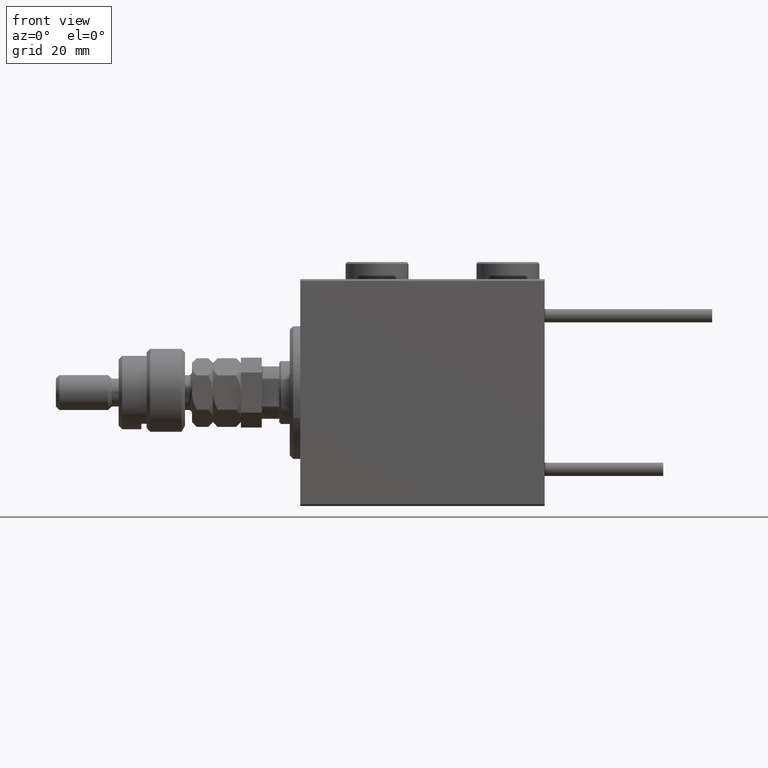
[diagram: clean part render]
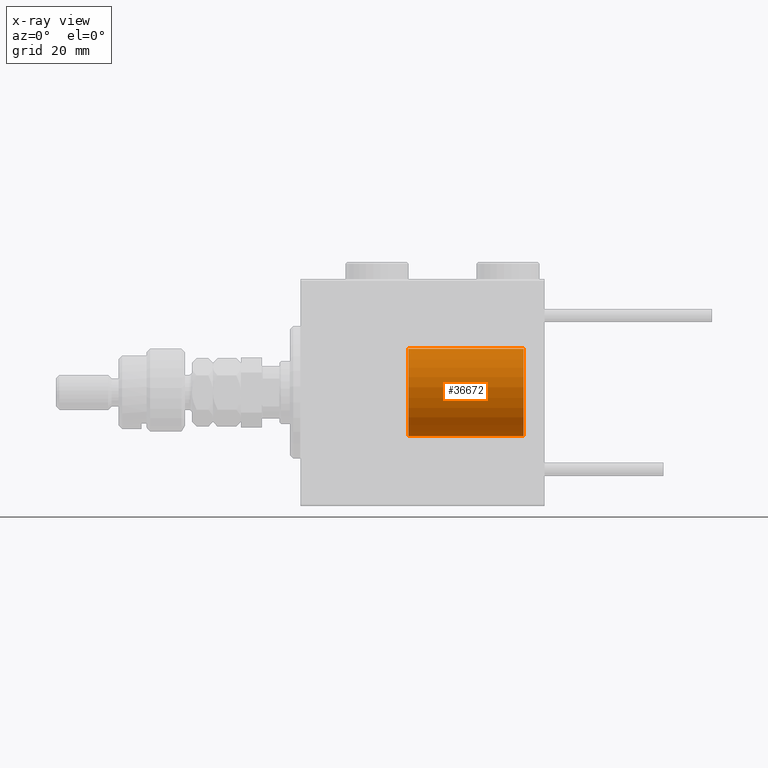
[diagram: x-ray — body ghosted, one internal face saturated and labeled with its STEP entity id]
A machine part, front view, then the same camera in x-ray: the body is ghosted and one INTERNAL B-rep face — a face not visible from any outside direction — is saturated and labeled: STEP entity #36672.
In plain terms, the highlighted cylindrical surface (partial cylindrical patch) has radius 12.5 mm, axis along (1, -0, -0).
Its self-contained STEP definition (entity closure, byte-faithful):
#346 = DIRECTION ( 'NONE',  ( 1.000000000000000000, 0.000000000000000000, 0.000000000000000000 ) ) ;
#388 = VERTEX_POINT ( 'NONE', #23178 ) ;
#1505 = EDGE_CURVE ( 'NONE', #388, #24459, #25751, .T. ) ;
#3338 = FACE_OUTER_BOUND ( 'NONE', #14830, .T. ) ;
#3604 = DIRECTION ( 'NONE',  ( -0.000000000000000000, -0.000000000000000000, -1.000000000000000000 ) ) ;
#4554 = CARTESIAN_POINT ( 'NONE',  ( -12.50000000000000000, 0.000000000000000000, 0.000000000000000000 ) ) ;
#5058 = DIRECTION ( 'NONE',  ( -0.000000000000000000, -0.000000000000000000, -1.000000000000000000 ) ) ;
#7188 = DIRECTION ( 'NONE',  ( -1.000000000000000000, 0.000000000000000000, 0.000000000000000000 ) ) ;
#9695 = CARTESIAN_POINT ( 'NONE',  ( 0.000000000000000000, 0.000000000000000000, 33.00000000000000000 ) ) ;
#12231 = CARTESIAN_POINT ( 'NONE',  ( 0.000000000000000000, 0.000000000000000000, 0.000000000000000000 ) ) ;
#14001 = ORIENTED_EDGE ( 'NONE', *, *, #52289, .T. ) ;
#14830 = EDGE_LOOP ( 'NONE', ( #32855, #32745, #14001, #41311 ) ) ;
#15937 = AXIS2_PLACEMENT_3D ( 'NONE', #12231, #22020, #17911 ) ;
#16611 = LINE ( 'NONE', #34193, #45027 ) ;
#17911 = DIRECTION ( 'NONE',  ( 1.000000000000000000, 0.000000000000000000, 0.000000000000000000 ) ) ;
#20089 = CYLINDRICAL_SURFACE ( 'NONE', #42143, 12.50000000000000000 ) ;
#20859 = VECTOR ( 'NONE', #49806, 1000.000000000000000 ) ;
#22020 = DIRECTION ( 'NONE',  ( 0.000000000000000000, 0.000000000000000000, 1.000000000000000000 ) ) ;
#22888 = CARTESIAN_POINT ( 'NONE',  ( 12.50000000000000000, 1.530808498934191521E-15, 0.000000000000000000 ) ) ;
#22939 = CIRCLE ( 'NONE', #15937, 12.50000000000000000 ) ;
#23178 = CARTESIAN_POINT ( 'NONE',  ( -12.50000000000000000, 0.000000000000000000, 33.00000000000000000 ) ) ;
#24459 = VERTEX_POINT ( 'NONE', #29780 ) ;
#25751 = CIRCLE ( 'NONE', #34563, 12.50000000000000000 ) ;
#29780 = CARTESIAN_POINT ( 'NONE',  ( 12.50000000000000000, 1.530808498934191521E-15, 33.00000000000000000 ) ) ;
#31125 = EDGE_CURVE ( 'NONE', #24459, #43199, #32493, .T. ) ;
#32493 = LINE ( 'NONE', #44588, #20859 ) ;
#32745 = ORIENTED_EDGE ( 'NONE', *, *, #1505, .F. ) ;
#32855 = ORIENTED_EDGE ( 'NONE', *, *, #31125, .F. ) ;
#34193 = CARTESIAN_POINT ( 'NONE',  ( -12.50000000000000000, 0.000000000000000000, 33.00000000000000000 ) ) ;
#34563 = AXIS2_PLACEMENT_3D ( 'NONE', #9695, #42954, #346 ) ;
#36672 = ADVANCED_FACE ( 'NONE', ( #3338 ), #20089, .T. ) ;
#41311 = ORIENTED_EDGE ( 'NONE', *, *, #48606, .T. ) ;
#42143 = AXIS2_PLACEMENT_3D ( 'NONE', #49231, #3604, #7188 ) ;
#42954 = DIRECTION ( 'NONE',  ( 0.000000000000000000, 0.000000000000000000, 1.000000000000000000 ) ) ;
#43199 = VERTEX_POINT ( 'NONE', #22888 ) ;
#44588 = CARTESIAN_POINT ( 'NONE',  ( 12.50000000000000000, 1.530808498934191521E-15, 33.00000000000000000 ) ) ;
#45027 = VECTOR ( 'NONE', #5058, 1000.000000000000000 ) ;
#46046 = VERTEX_POINT ( 'NONE', #4554 ) ;
#48606 = EDGE_CURVE ( 'NONE', #46046, #43199, #22939, .T. ) ;
#49231 = CARTESIAN_POINT ( 'NONE',  ( 0.000000000000000000, 0.000000000000000000, 33.00000000000000000 ) ) ;
#49806 = DIRECTION ( 'NONE',  ( -0.000000000000000000, -0.000000000000000000, -1.000000000000000000 ) ) ;
#52289 = EDGE_CURVE ( 'NONE', #388, #46046, #16611, .T. ) ;